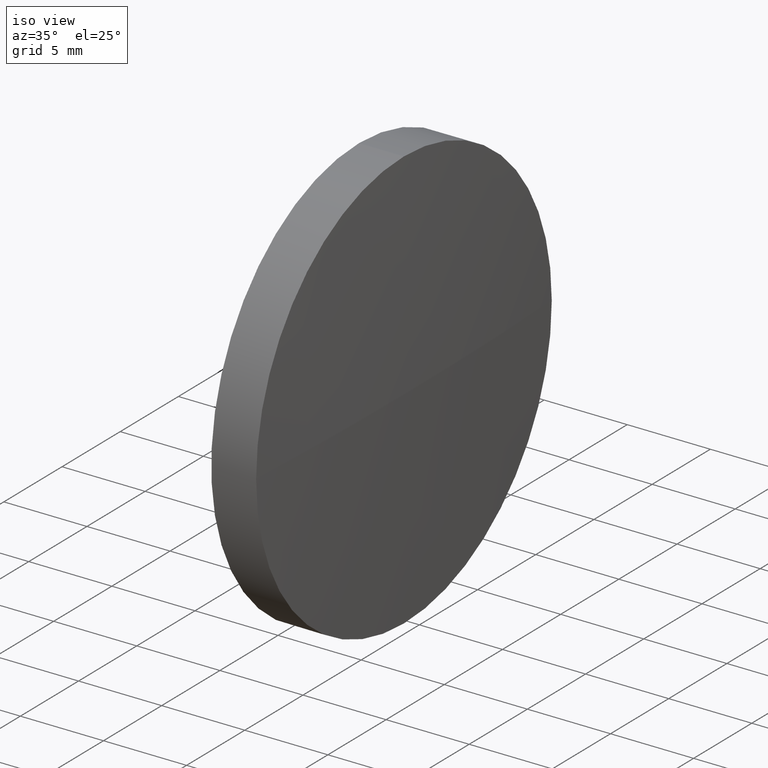
[diagram: clean part render]
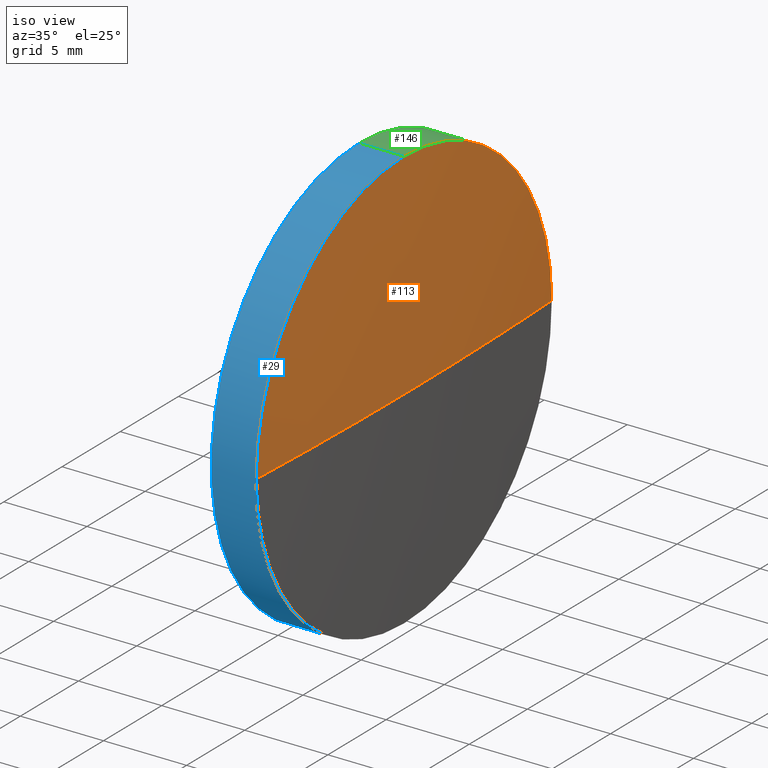
[diagram: same view with three faces highlighted in distinct colors, each labeled with its STEP entity id]
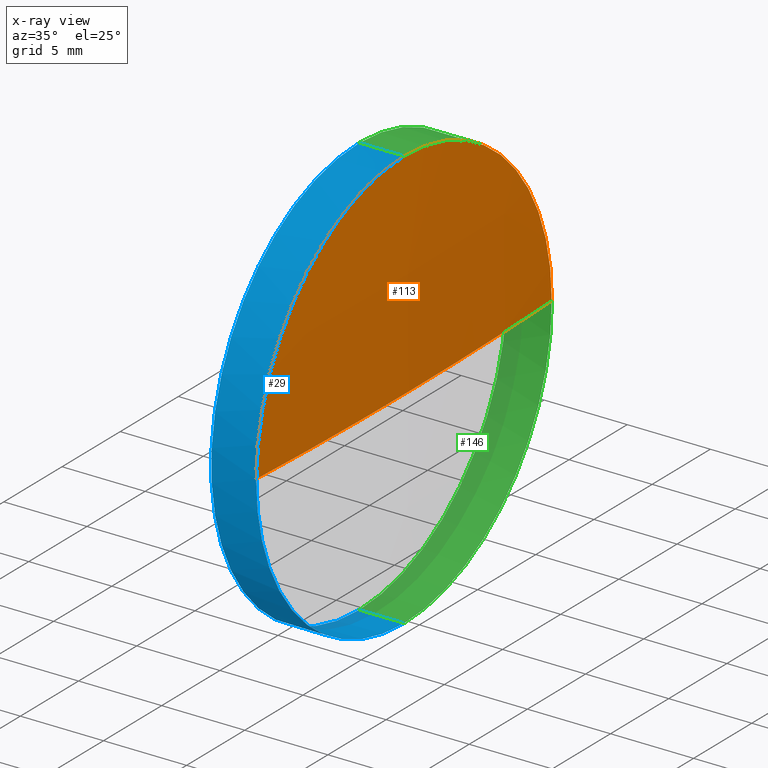
[diagram: x-ray of the same camera — body ghosted, the three highlighted faces saturated]
A machine part, iso view with three faces highlighted in distinct colors.
The next image is the same camera in x-ray (body ghosted, the three faces saturated) — at least one of them is partly hidden behind the body in this view.
Their STEP definitions:

[orange] entity #113 — the highlighted spherical surface has radius 268.967 mm.
#1 = ORIENTED_EDGE ( 'NONE', *, *, #179, .F. ) ;
#2 = FACE_OUTER_BOUND ( 'NONE', #82, .T. ) ;
#9 = CARTESIAN_POINT ( 'NONE',  ( 695.2543296014569000, 68.74304805119973600, 0.0000000000000000000 ) ) ;
#10 = AXIS2_PLACEMENT_3D ( 'NONE', #86, #90, #69 ) ;
#14 = CARTESIAN_POINT ( 'NONE',  ( 426.2876629347877600, 68.74304805119972200, 0.0000000000000000000 ) ) ;
#15 = DIRECTION ( 'NONE',  ( -0.0000000000000000000, 0.0000000000000000000, -1.000000000000000000 ) ) ;
#22 = EDGE_CURVE ( 'NONE', #24, #99, #34, .T. ) ;
#24 = VERTEX_POINT ( 'NONE', #167 ) ;
#32 = CARTESIAN_POINT ( 'NONE',  ( 694.9543296014569500, 56.04304805120011000, -1.555301434917091100E-015 ) ) ;
#34 = CIRCLE ( 'NONE', #10, 12.70000000000000300 ) ;
#40 = EDGE_CURVE ( 'NONE', #52, #24, #60, .T. ) ;
#48 = SPHERICAL_SURFACE ( 'NONE', #185, 268.9666666666692000 ) ;
#49 = CARTESIAN_POINT ( 'NONE',  ( 694.9543296014569500, 81.44304805119935500, 0.0000000000000000000 ) ) ;
#51 = DIRECTION ( 'NONE',  ( -0.0000000000000000000, 0.0000000000000000000, 1.000000000000000000 ) ) ;
#52 = VERTEX_POINT ( 'NONE', #32 ) ;
#60 = CIRCLE ( 'NONE', #175, 12.70000000000000300 ) ;
#69 = DIRECTION ( 'NONE',  ( 0.0000000000000000000, 0.0000000000000000000, 1.000000000000000000 ) ) ;
#81 = VERTEX_POINT ( 'NONE', #9 ) ;
#82 = EDGE_LOOP ( 'NONE', ( #1, #88, #93, #107 ) ) ;
#86 = CARTESIAN_POINT ( 'NONE',  ( 694.9543296014569500, 68.74304805119973600, 0.0000000000000000000 ) ) ;
#87 = DIRECTION ( 'NONE',  ( -1.000000000000000000, -0.0000000000000000000, -0.0000000000000000000 ) ) ;
#88 = ORIENTED_EDGE ( 'NONE', *, *, #184, .T. ) ;
#90 = DIRECTION ( 'NONE',  ( -1.000000000000000000, -0.0000000000000000000, -0.0000000000000000000 ) ) ;
#91 = DIRECTION ( 'NONE',  ( 0.0000000000000000000, 1.224646799147353200E-016, -1.000000000000000000 ) ) ;
#93 = ORIENTED_EDGE ( 'NONE', *, *, #22, .F. ) ;
#95 = CARTESIAN_POINT ( 'NONE',  ( 426.2876629347877600, 68.74304805119972200, 0.0000000000000000000 ) ) ;
#99 = VERTEX_POINT ( 'NONE', #49 ) ;
#103 = CIRCLE ( 'NONE', #176, 268.9666666666692000 ) ;
#104 = CARTESIAN_POINT ( 'NONE',  ( 694.9543296014569500, 68.74304805119973600, 0.0000000000000000000 ) ) ;
#107 = ORIENTED_EDGE ( 'NONE', *, *, #40, .F. ) ;
#108 = DIRECTION ( 'NONE',  ( 0.0000000000000000000, 1.000000000000000000, 0.0000000000000000000 ) ) ;
#113 = ADVANCED_FACE ( 'NONE', ( #2 ), #48, .T. ) ;
#118 = DIRECTION ( 'NONE',  ( 0.0000000000000000000, 0.0000000000000000000, 1.000000000000000000 ) ) ;
#123 = DIRECTION ( 'NONE',  ( 1.000000000000000000, 0.0000000000000000000, 0.0000000000000000000 ) ) ;
#129 = AXIS2_PLACEMENT_3D ( 'NONE', #95, #91, #159 ) ;
#159 = DIRECTION ( 'NONE',  ( 0.0000000000000000000, 1.000000000000000000, 1.224646799147353000E-016 ) ) ;
#162 = CIRCLE ( 'NONE', #129, 268.9666666666692000 ) ;
#167 = CARTESIAN_POINT ( 'NONE',  ( 694.9543296014569500, 68.74304805119973600, 12.70000000000000300 ) ) ;
#171 = CARTESIAN_POINT ( 'NONE',  ( 426.2876629347877600, 68.74304805119972200, 0.0000000000000000000 ) ) ;
#175 = AXIS2_PLACEMENT_3D ( 'NONE', #104, #87, #118 ) ;
#176 = AXIS2_PLACEMENT_3D ( 'NONE', #171, #51, #123 ) ;
#179 = EDGE_CURVE ( 'NONE', #81, #52, #162, .T. ) ;
#184 = EDGE_CURVE ( 'NONE', #81, #99, #103, .T. ) ;
#185 = AXIS2_PLACEMENT_3D ( 'NONE', #14, #15, #108 ) ;

[blue] entity #29 — the highlighted cylindrical surface (partial cylindrical patch) has radius 12.7 mm, axis along (-1, -0, -0).
#7 = ORIENTED_EDGE ( 'NONE', *, *, #144, .T. ) ;
#12 = LINE ( 'NONE', #169, #153 ) ;
#13 = DIRECTION ( 'NONE',  ( 0.0000000000000000000, 0.0000000000000000000, 1.000000000000000000 ) ) ;
#24 = VERTEX_POINT ( 'NONE', #167 ) ;
#29 = ADVANCED_FACE ( 'NONE', ( #112 ), #100, .T. ) ;
#32 = CARTESIAN_POINT ( 'NONE',  ( 694.9543296014569500, 56.04304805120011000, -1.555301434917091100E-015 ) ) ;
#33 = AXIS2_PLACEMENT_3D ( 'NONE', #70, #180, #13 ) ;
#35 = CARTESIAN_POINT ( 'NONE',  ( 694.9543296014569500, 68.74304805119973600, -12.70000000000000300 ) ) ;
#36 = DIRECTION ( 'NONE',  ( 0.0000000000000000000, 0.0000000000000000000, 1.000000000000000000 ) ) ;
#40 = EDGE_CURVE ( 'NONE', #52, #24, #60, .T. ) ;
#50 = EDGE_CURVE ( 'NONE', #148, #127, #168, .T. ) ;
#52 = VERTEX_POINT ( 'NONE', #32 ) ;
#55 = AXIS2_PLACEMENT_3D ( 'NONE', #141, #172, #36 ) ;
#58 = ORIENTED_EDGE ( 'NONE', *, *, #84, .F. ) ;
#60 = CIRCLE ( 'NONE', #175, 12.70000000000000300 ) ;
#65 = DIRECTION ( 'NONE',  ( -1.000000000000000000, -0.0000000000000000000, -0.0000000000000000000 ) ) ;
#70 = CARTESIAN_POINT ( 'NONE',  ( 686.5496560540020700, 68.74304805119973600, 0.0000000000000000000 ) ) ;
#76 = CARTESIAN_POINT ( 'NONE',  ( 692.2543296014569000, 68.74304805119973600, 0.0000000000000000000 ) ) ;
#78 = CIRCLE ( 'NONE', #55, 12.70000000000000300 ) ;
#84 = EDGE_CURVE ( 'NONE', #131, #148, #120, .T. ) ;
#87 = DIRECTION ( 'NONE',  ( -1.000000000000000000, -0.0000000000000000000, -0.0000000000000000000 ) ) ;
#89 = VECTOR ( 'NONE', #106, 1000.000000000000000 ) ;
#98 = ORIENTED_EDGE ( 'NONE', *, *, #50, .F. ) ;
#100 = CYLINDRICAL_SURFACE ( 'NONE', #33, 12.70000000000000300 ) ;
#104 = CARTESIAN_POINT ( 'NONE',  ( 694.9543296014569500, 68.74304805119973600, 0.0000000000000000000 ) ) ;
#106 = DIRECTION ( 'NONE',  ( -1.000000000000000000, -0.0000000000000000000, -0.0000000000000000000 ) ) ;
#112 = FACE_OUTER_BOUND ( 'NONE', #160, .T. ) ;
#118 = DIRECTION ( 'NONE',  ( 0.0000000000000000000, 0.0000000000000000000, 1.000000000000000000 ) ) ;
#120 = LINE ( 'NONE', #154, #89 ) ;
#127 = VERTEX_POINT ( 'NONE', #155 ) ;
#128 = EDGE_CURVE ( 'NONE', #131, #52, #78, .T. ) ;
#130 = ORIENTED_EDGE ( 'NONE', *, *, #40, .T. ) ;
#131 = VERTEX_POINT ( 'NONE', #35 ) ;
#137 = CARTESIAN_POINT ( 'NONE',  ( 692.2543296014569000, 68.74304805119973600, -12.70000000000000300 ) ) ;
#141 = CARTESIAN_POINT ( 'NONE',  ( 694.9543296014569500, 68.74304805119973600, 0.0000000000000000000 ) ) ;
#144 = EDGE_CURVE ( 'NONE', #24, #127, #12, .T. ) ;
#148 = VERTEX_POINT ( 'NONE', #137 ) ;
#153 = VECTOR ( 'NONE', #157, 1000.000000000000000 ) ;
#154 = CARTESIAN_POINT ( 'NONE',  ( 686.5496560540020700, 68.74304805119973600, -12.70000000000000300 ) ) ;
#155 = CARTESIAN_POINT ( 'NONE',  ( 692.2543296014569000, 68.74304805119973600, 12.70000000000000300 ) ) ;
#157 = DIRECTION ( 'NONE',  ( -1.000000000000000000, -0.0000000000000000000, -0.0000000000000000000 ) ) ;
#158 = AXIS2_PLACEMENT_3D ( 'NONE', #76, #65, #181 ) ;
#160 = EDGE_LOOP ( 'NONE', ( #58, #161, #130, #7, #98 ) ) ;
#161 = ORIENTED_EDGE ( 'NONE', *, *, #128, .T. ) ;
#167 = CARTESIAN_POINT ( 'NONE',  ( 694.9543296014569500, 68.74304805119973600, 12.70000000000000300 ) ) ;
#168 = CIRCLE ( 'NONE', #158, 12.70000000000000300 ) ;
#169 = CARTESIAN_POINT ( 'NONE',  ( 686.5496560540020700, 68.74304805119973600, 12.70000000000000300 ) ) ;
#172 = DIRECTION ( 'NONE',  ( -1.000000000000000000, -0.0000000000000000000, -0.0000000000000000000 ) ) ;
#175 = AXIS2_PLACEMENT_3D ( 'NONE', #104, #87, #118 ) ;
#180 = DIRECTION ( 'NONE',  ( -1.000000000000000000, -0.0000000000000000000, -0.0000000000000000000 ) ) ;
#181 = DIRECTION ( 'NONE',  ( 0.0000000000000000000, 0.0000000000000000000, 1.000000000000000000 ) ) ;

[green] entity #146 — the highlighted cylindrical surface (partial cylindrical patch) has radius 12.7 mm, axis along (-1, -0, -0).
#6 = EDGE_CURVE ( 'NONE', #99, #131, #138, .T. ) ;
#10 = AXIS2_PLACEMENT_3D ( 'NONE', #86, #90, #69 ) ;
#12 = LINE ( 'NONE', #169, #153 ) ;
#22 = EDGE_CURVE ( 'NONE', #24, #99, #34, .T. ) ;
#24 = VERTEX_POINT ( 'NONE', #167 ) ;
#25 = FACE_OUTER_BOUND ( 'NONE', #125, .T. ) ;
#30 = EDGE_CURVE ( 'NONE', #127, #148, #39, .T. ) ;
#34 = CIRCLE ( 'NONE', #10, 12.70000000000000300 ) ;
#35 = CARTESIAN_POINT ( 'NONE',  ( 694.9543296014569500, 68.74304805119973600, -12.70000000000000300 ) ) ;
#39 = CIRCLE ( 'NONE', #145, 12.70000000000000300 ) ;
#42 = CARTESIAN_POINT ( 'NONE',  ( 694.9543296014569500, 68.74304805119973600, 0.0000000000000000000 ) ) ;
#43 = DIRECTION ( 'NONE',  ( 0.0000000000000000000, 0.0000000000000000000, 1.000000000000000000 ) ) ;
#47 = CARTESIAN_POINT ( 'NONE',  ( 686.5496560540020700, 68.74304805119973600, 0.0000000000000000000 ) ) ;
#49 = CARTESIAN_POINT ( 'NONE',  ( 694.9543296014569500, 81.44304805119935500, 0.0000000000000000000 ) ) ;
#53 = ORIENTED_EDGE ( 'NONE', *, *, #84, .T. ) ;
#56 = ORIENTED_EDGE ( 'NONE', *, *, #30, .F. ) ;
#63 = ORIENTED_EDGE ( 'NONE', *, *, #6, .T. ) ;
#69 = DIRECTION ( 'NONE',  ( 0.0000000000000000000, 0.0000000000000000000, 1.000000000000000000 ) ) ;
#72 = ORIENTED_EDGE ( 'NONE', *, *, #22, .T. ) ;
#84 = EDGE_CURVE ( 'NONE', #131, #148, #120, .T. ) ;
#86 = CARTESIAN_POINT ( 'NONE',  ( 694.9543296014569500, 68.74304805119973600, 0.0000000000000000000 ) ) ;
#89 = VECTOR ( 'NONE', #106, 1000.000000000000000 ) ;
#90 = DIRECTION ( 'NONE',  ( -1.000000000000000000, -0.0000000000000000000, -0.0000000000000000000 ) ) ;
#96 = DIRECTION ( 'NONE',  ( -1.000000000000000000, -0.0000000000000000000, -0.0000000000000000000 ) ) ;
#97 = AXIS2_PLACEMENT_3D ( 'NONE', #47, #96, #143 ) ;
#99 = VERTEX_POINT ( 'NONE', #49 ) ;
#102 = DIRECTION ( 'NONE',  ( 0.0000000000000000000, 0.0000000000000000000, 1.000000000000000000 ) ) ;
#106 = DIRECTION ( 'NONE',  ( -1.000000000000000000, -0.0000000000000000000, -0.0000000000000000000 ) ) ;
#119 = AXIS2_PLACEMENT_3D ( 'NONE', #42, #147, #43 ) ;
#120 = LINE ( 'NONE', #154, #89 ) ;
#125 = EDGE_LOOP ( 'NONE', ( #63, #53, #56, #163, #72 ) ) ;
#127 = VERTEX_POINT ( 'NONE', #155 ) ;
#131 = VERTEX_POINT ( 'NONE', #35 ) ;
#137 = CARTESIAN_POINT ( 'NONE',  ( 692.2543296014569000, 68.74304805119973600, -12.70000000000000300 ) ) ;
#138 = CIRCLE ( 'NONE', #119, 12.70000000000000300 ) ;
#140 = DIRECTION ( 'NONE',  ( -1.000000000000000000, -0.0000000000000000000, -0.0000000000000000000 ) ) ;
#143 = DIRECTION ( 'NONE',  ( 0.0000000000000000000, 0.0000000000000000000, 1.000000000000000000 ) ) ;
#144 = EDGE_CURVE ( 'NONE', #24, #127, #12, .T. ) ;
#145 = AXIS2_PLACEMENT_3D ( 'NONE', #178, #140, #102 ) ;
#146 = ADVANCED_FACE ( 'NONE', ( #25 ), #177, .T. ) ;
#147 = DIRECTION ( 'NONE',  ( -1.000000000000000000, -0.0000000000000000000, -0.0000000000000000000 ) ) ;
#148 = VERTEX_POINT ( 'NONE', #137 ) ;
#153 = VECTOR ( 'NONE', #157, 1000.000000000000000 ) ;
#154 = CARTESIAN_POINT ( 'NONE',  ( 686.5496560540020700, 68.74304805119973600, -12.70000000000000300 ) ) ;
#155 = CARTESIAN_POINT ( 'NONE',  ( 692.2543296014569000, 68.74304805119973600, 12.70000000000000300 ) ) ;
#157 = DIRECTION ( 'NONE',  ( -1.000000000000000000, -0.0000000000000000000, -0.0000000000000000000 ) ) ;
#163 = ORIENTED_EDGE ( 'NONE', *, *, #144, .F. ) ;
#167 = CARTESIAN_POINT ( 'NONE',  ( 694.9543296014569500, 68.74304805119973600, 12.70000000000000300 ) ) ;
#169 = CARTESIAN_POINT ( 'NONE',  ( 686.5496560540020700, 68.74304805119973600, 12.70000000000000300 ) ) ;
#177 = CYLINDRICAL_SURFACE ( 'NONE', #97, 12.70000000000000300 ) ;
#178 = CARTESIAN_POINT ( 'NONE',  ( 692.2543296014569000, 68.74304805119973600, 0.0000000000000000000 ) ) ;